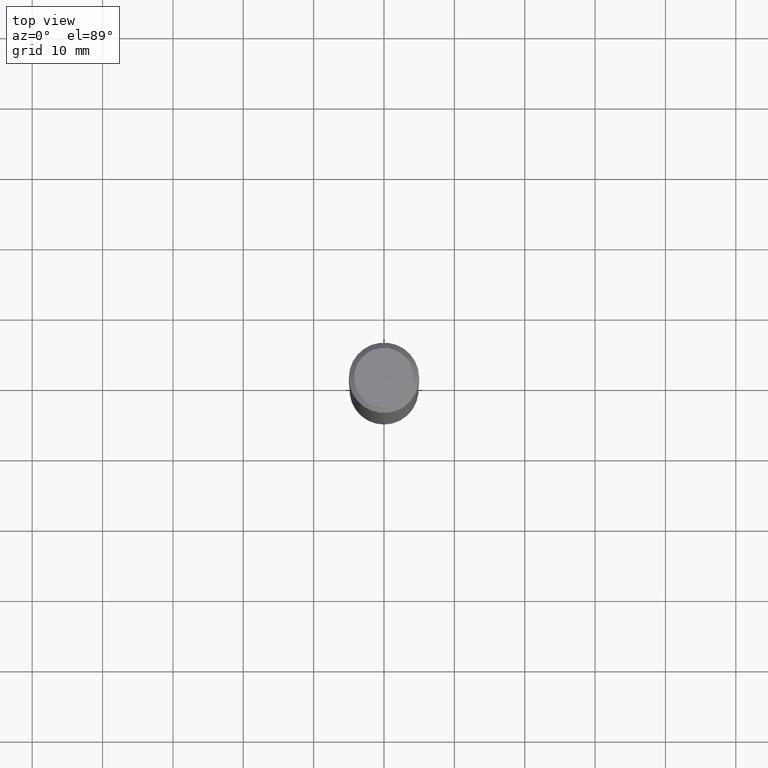
[diagram: clean part render]
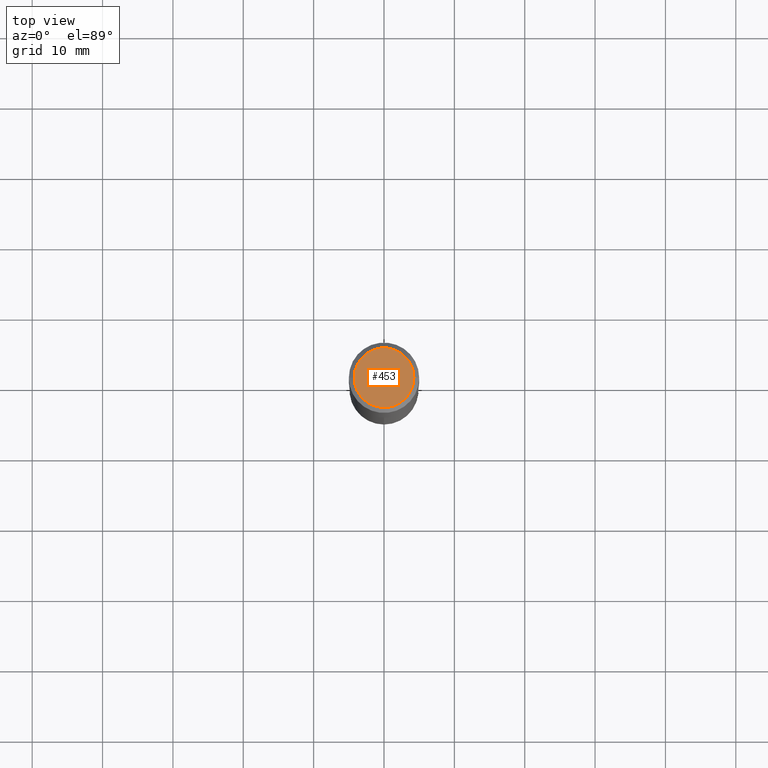
[diagram: same view with one face highlighted and labeled with its STEP entity id]
A machine part, top view. The second image highlights one B-rep face of the part: STEP entity #453.
In plain terms, the highlighted planar face has unit normal (0, -0, -1).
Its self-contained STEP definition (entity closure, byte-faithful):
#25 = CARTESIAN_POINT ( 'NONE',  ( -5.008488096090108951E-47, 7.150793614331948590E-33, 2.048068690724054183E-18 ) ) ;
#64 = CIRCLE ( 'NONE', #121, 0.1673224999999999851 ) ;
#115 = DIRECTION ( 'NONE',  ( -2.445468806185136597E-29, 3.491481338843145583E-15, 1.000000000000000000 ) ) ;
#121 = AXIS2_PLACEMENT_3D ( 'NONE', #472, #115, #433 ) ;
#140 = PLANE ( 'NONE',  #267 ) ;
#154 = AXIS2_PLACEMENT_3D ( 'NONE', #198, #194, #237 ) ;
#171 = DIRECTION ( 'NONE',  ( 2.438088387897960049E-29, -3.491481338843145188E-15, -1.000000000000000000 ) ) ;
#176 = CARTESIAN_POINT ( 'NONE',  ( 0.1673224999999999851, -1.300749711163072397E-15, 4.096137381456741925E-18 ) ) ;
#181 = ORIENTED_EDGE ( 'NONE', *, *, #272, .T. ) ;
#184 = VERTEX_POINT ( 'NONE', #176 ) ;
#191 = CIRCLE ( 'NONE', #154, 0.1673224999999999851 ) ;
#194 = DIRECTION ( 'NONE',  ( -2.445468806185136597E-29, 3.491481338843145583E-15, 1.000000000000000000 ) ) ;
#198 = CARTESIAN_POINT ( 'NONE',  ( -1.001697619218021790E-46, 1.430158722866389718E-32, 4.096137381448108366E-18 ) ) ;
#237 = DIRECTION ( 'NONE',  ( 1.000000000000000000, -6.982962677686267499E-15, 4.876294436782262290E-29 ) ) ;
#249 = CARTESIAN_POINT ( 'NONE',  ( -0.1673224999999999851, 1.219954130253505263E-15, 4.096137381439757534E-18 ) ) ;
#250 = ORIENTED_EDGE ( 'NONE', *, *, #411, .T. ) ;
#267 = AXIS2_PLACEMENT_3D ( 'NONE', #25, #171, #324 ) ;
#272 = EDGE_CURVE ( 'NONE', #468, #184, #64, .T. ) ;
#286 = EDGE_LOOP ( 'NONE', ( #181, #250 ) ) ;
#324 = DIRECTION ( 'NONE',  ( -1.000000000000000000, 6.982962677686265922E-15, -4.876176775795935793E-29 ) ) ;
#333 = FACE_OUTER_BOUND ( 'NONE', #286, .T. ) ;
#411 = EDGE_CURVE ( 'NONE', #184, #468, #191, .T. ) ;
#433 = DIRECTION ( 'NONE',  ( 1.000000000000000000, -6.982962677686267499E-15, 4.876294436782262290E-29 ) ) ;
#453 = ADVANCED_FACE ( 'NONE', ( #333 ), #140, .F. ) ;
#468 = VERTEX_POINT ( 'NONE', #249 ) ;
#472 = CARTESIAN_POINT ( 'NONE',  ( -1.001697619218021790E-46, 1.430158722866389718E-32, 4.096137381448108366E-18 ) ) ;